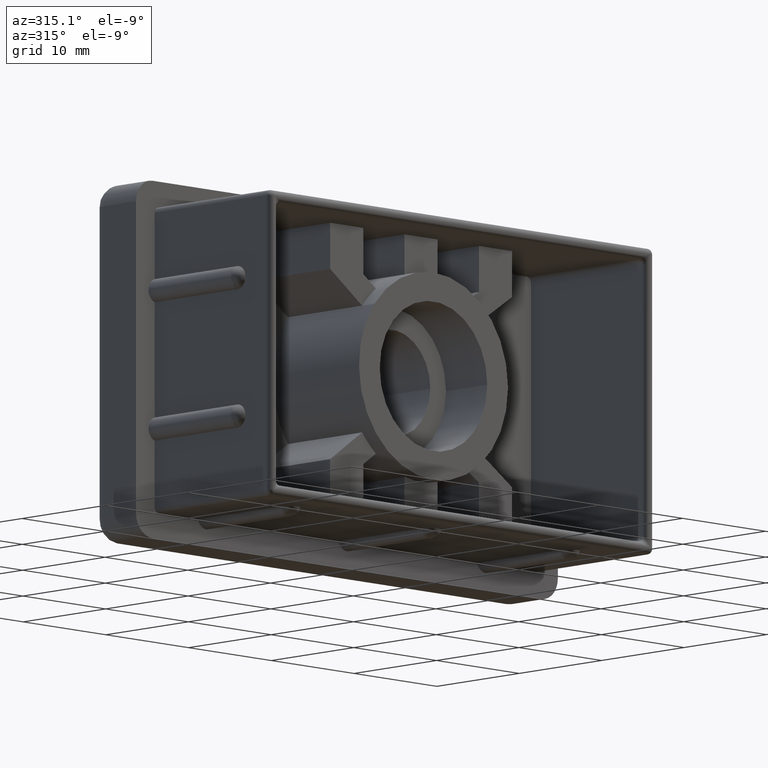
[diagram: clean part render]
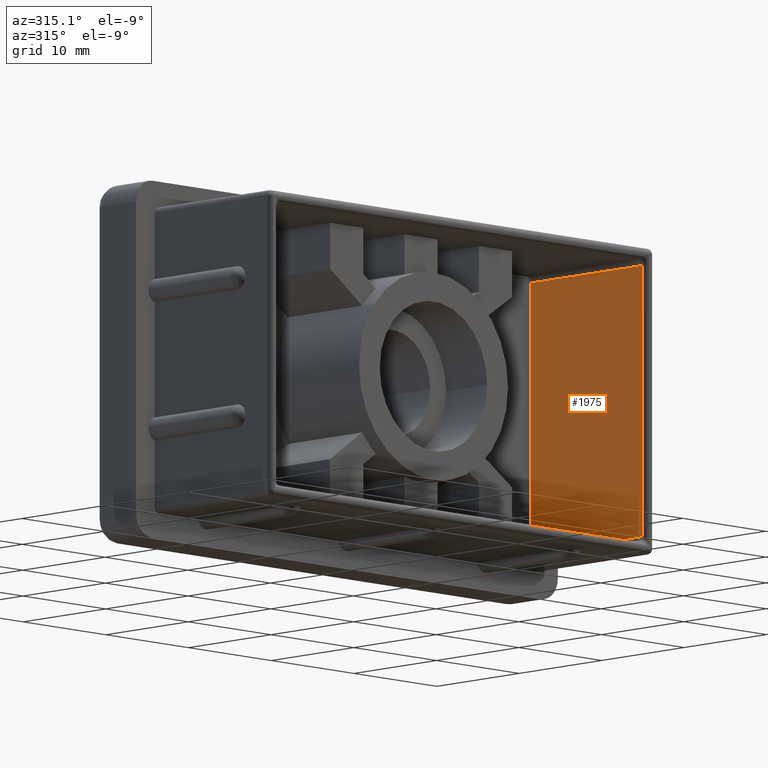
[diagram: same view with one face highlighted and labeled with its STEP entity id]
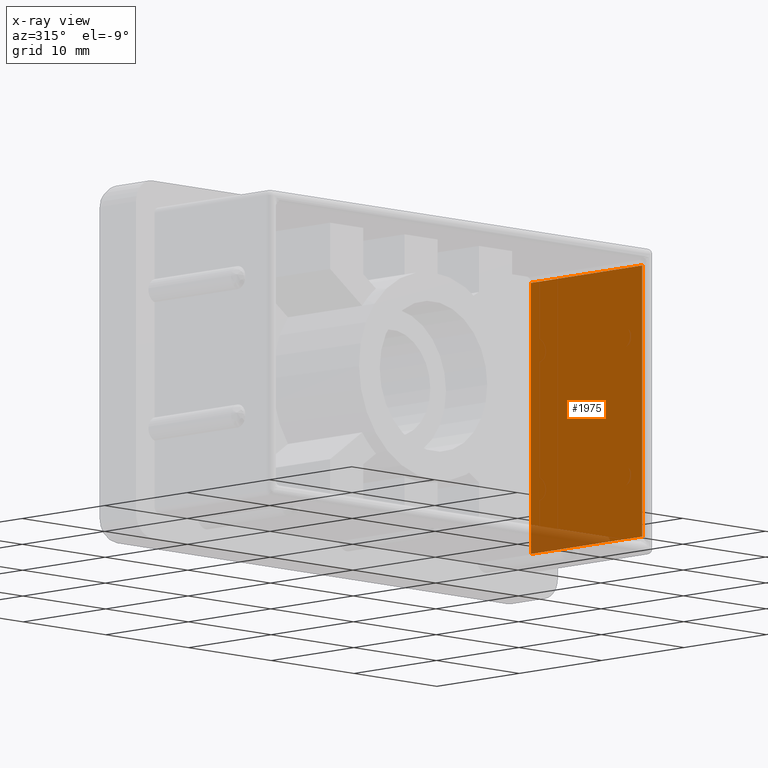
[diagram: x-ray of the same camera — body ghosted, the highlighted face saturated]
A machine part, auxiliary view. The second image highlights one B-rep face of the part: STEP entity #1975.
The next image is the same camera in x-ray: the body ghosted, the highlighted face saturated — about 4% of this face is hidden behind the body in this view.
In plain terms, the highlighted planar face has unit normal (1, 0, 0).
Its self-contained STEP definition (entity closure, byte-faithful):
#106=PLANE('',#2146);
#134=LINE('',#2723,#310);
#167=LINE('',#2918,#343);
#194=LINE('',#3022,#370);
#278=LINE('',#4052,#454);
#310=VECTOR('',#2178,13.5);
#343=VECTOR('',#2243,13.5);
#370=VECTOR('',#2276,23.4999999999999);
#454=VECTOR('',#2568,23.5);
#619=FACE_OUTER_BOUND('',#733,.T.);
#733=EDGE_LOOP('',(#1856,#1857,#1858,#1859));
#818=VERTEX_POINT('',#2713);
#821=VERTEX_POINT('',#2720);
#863=VERTEX_POINT('',#2910);
#864=VERTEX_POINT('',#2915);
#1016=EDGE_CURVE('',#818,#821,#134,.T.);
#1065=EDGE_CURVE('',#864,#863,#167,.T.);
#1096=EDGE_CURVE('',#863,#818,#194,.T.);
#1252=EDGE_CURVE('',#864,#821,#278,.T.);
#1856=ORIENTED_EDGE('',*,*,#1016,.F.);
#1857=ORIENTED_EDGE('',*,*,#1096,.F.);
#1858=ORIENTED_EDGE('',*,*,#1065,.F.);
#1859=ORIENTED_EDGE('',*,*,#1252,.T.);
#1975=ADVANCED_FACE('',(#619),#106,.F.);
#2146=AXIS2_PLACEMENT_3D('',#4133,#2659,#2660);
#2178=DIRECTION('',(0.,1.,0.));
#2243=DIRECTION('',(0.,-1.,0.));
#2276=DIRECTION('',(0.,0.,-1.));
#2568=DIRECTION('',(0.,0.,-1.));
#2659=DIRECTION('center_axis',(1.,0.,0.));
#2660=DIRECTION('ref_axis',(0.,0.,-1.));
#2713=CARTESIAN_POINT('',(45.5,0.5,-25.));
#2720=CARTESIAN_POINT('',(45.5,14.,-25.));
#2723=CARTESIAN_POINT('',(45.5,0.,-25.));
#2910=CARTESIAN_POINT('',(45.5,0.5,-1.50000000000004));
#2915=CARTESIAN_POINT('',(45.5,14.,-1.49999999999998));
#2918=CARTESIAN_POINT('',(45.5,0.,-1.49999999999998));
#3022=CARTESIAN_POINT('',(45.5,0.5,-7.12499999999999));
#4052=CARTESIAN_POINT('',(45.5,14.,-0.999999999999983));
#4133=CARTESIAN_POINT('Origin',(45.5,0.,-0.999999999999983));